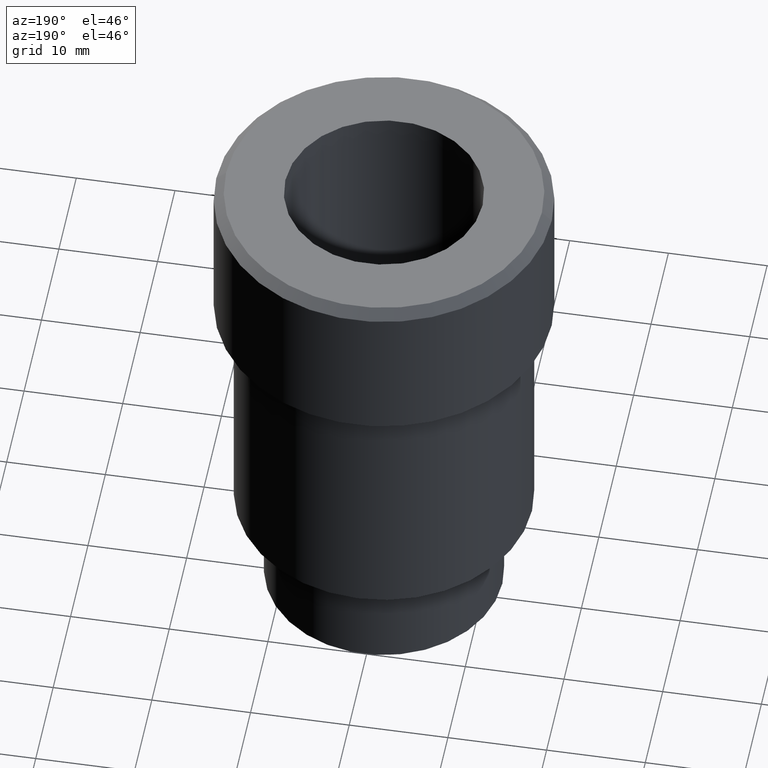
[diagram: clean part render]
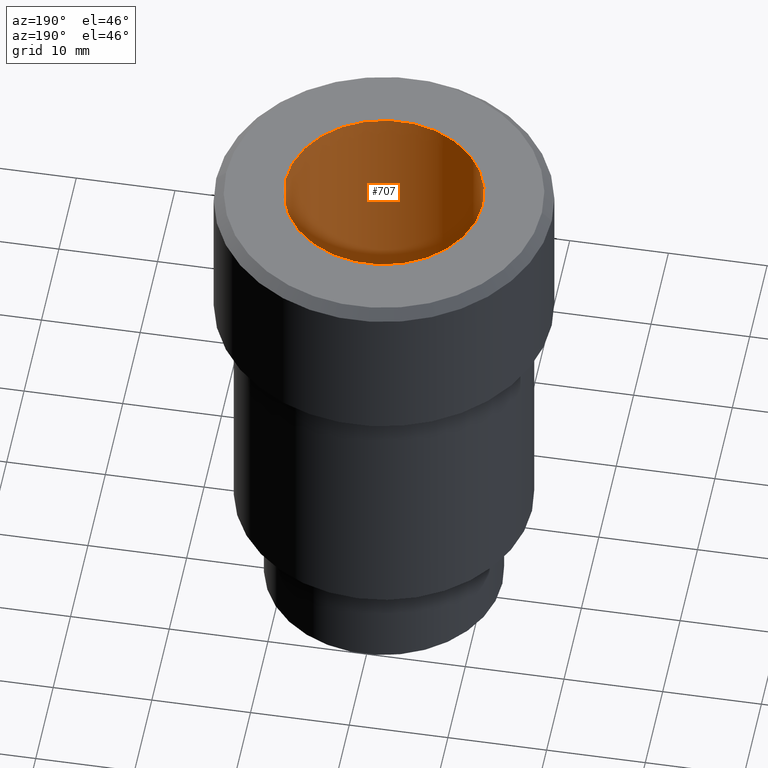
[diagram: same view with one face highlighted and labeled with its STEP entity id]
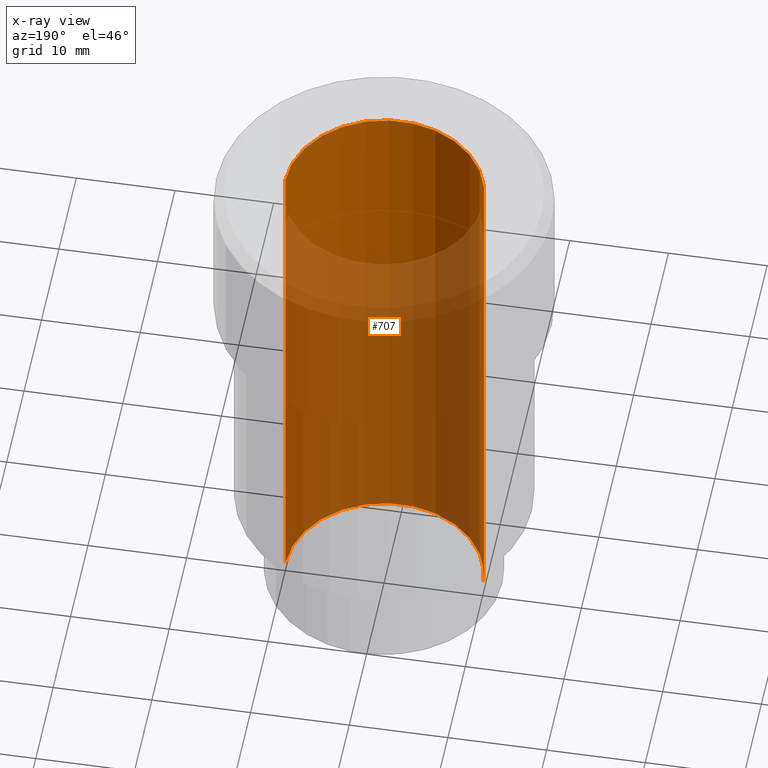
[diagram: x-ray of the same camera — body ghosted, the highlighted face saturated]
A machine part, auxiliary view. The second image highlights one B-rep face of the part: STEP entity #707.
The next image is the same camera in x-ray: the body ghosted, the highlighted face saturated — about 70% of this face is hidden behind the body in this view.
In plain terms, the highlighted cylindrical surface (partial cylindrical patch) has radius 10 mm, axis along (-0, -0, 1).
Its self-contained STEP definition (entity closure, byte-faithful):
#12 = AXIS2_PLACEMENT_3D ( 'NONE', #413, #170, #606 ) ;
#17 = CARTESIAN_POINT ( 'NONE',  ( 10.00000000000000000, 0.000000000000000000, -54.99999999999999289 ) ) ;
#20 = EDGE_CURVE ( 'NONE', #294, #766, #657, .T. ) ;
#22 = VECTOR ( 'NONE', #404, 1000.000000000000000 ) ;
#60 = EDGE_CURVE ( 'NONE', #699, #190, #678, .T. ) ;
#65 = DIRECTION ( 'NONE',  ( 1.000000000000000000, 0.000000000000000000, 0.000000000000000000 ) ) ;
#69 = AXIS2_PLACEMENT_3D ( 'NONE', #357, #483, #561 ) ;
#81 = EDGE_CURVE ( 'NONE', #294, #699, #180, .T. ) ;
#95 = CARTESIAN_POINT ( 'NONE',  ( -10.00000000000000000, 1.224646799147353256E-15, -54.99999999999999289 ) ) ;
#170 = DIRECTION ( 'NONE',  ( -0.000000000000000000, -0.000000000000000000, 1.000000000000000000 ) ) ;
#180 = CIRCLE ( 'NONE', #601, 10.00000000000000000 ) ;
#190 = VERTEX_POINT ( 'NONE', #736 ) ;
#227 = CARTESIAN_POINT ( 'NONE',  ( 10.00000000000000000, 0.000000000000000000, -54.99999999999999289 ) ) ;
#232 = CARTESIAN_POINT ( 'NONE',  ( 0.000000000000000000, 0.000000000000000000, -54.99999999999999289 ) ) ;
#233 = EDGE_CURVE ( 'NONE', #766, #190, #534, .T. ) ;
#291 = CYLINDRICAL_SURFACE ( 'NONE', #12, 10.00000000000000000 ) ;
#294 = VERTEX_POINT ( 'NONE', #318 ) ;
#318 = CARTESIAN_POINT ( 'NONE',  ( -10.00000000000000000, 1.224646799147353256E-15, -54.99999999999999289 ) ) ;
#357 = CARTESIAN_POINT ( 'NONE',  ( 0.000000000000000000, 0.000000000000000000, 0.000000000000000000 ) ) ;
#359 = DIRECTION ( 'NONE',  ( 0.000000000000000000, 0.000000000000000000, 1.000000000000000000 ) ) ;
#364 = CARTESIAN_POINT ( 'NONE',  ( -10.00000000000000000, 1.224646799147353256E-15, 0.000000000000000000 ) ) ;
#391 = ORIENTED_EDGE ( 'NONE', *, *, #60, .F. ) ;
#404 = DIRECTION ( 'NONE',  ( -0.000000000000000000, -0.000000000000000000, 1.000000000000000000 ) ) ;
#413 = CARTESIAN_POINT ( 'NONE',  ( 0.000000000000000000, 0.000000000000000000, -54.99999999999999289 ) ) ;
#420 = VECTOR ( 'NONE', #613, 1000.000000000000000 ) ;
#422 = ORIENTED_EDGE ( 'NONE', *, *, #20, .T. ) ;
#461 = ORIENTED_EDGE ( 'NONE', *, *, #233, .T. ) ;
#483 = DIRECTION ( 'NONE',  ( -0.000000000000000000, -0.000000000000000000, 1.000000000000000000 ) ) ;
#527 = ORIENTED_EDGE ( 'NONE', *, *, #81, .F. ) ;
#534 = CIRCLE ( 'NONE', #69, 10.00000000000000000 ) ;
#561 = DIRECTION ( 'NONE',  ( 1.000000000000000000, 0.000000000000000000, 0.000000000000000000 ) ) ;
#601 = AXIS2_PLACEMENT_3D ( 'NONE', #232, #359, #65 ) ;
#606 = DIRECTION ( 'NONE',  ( 1.000000000000000000, 0.000000000000000000, 0.000000000000000000 ) ) ;
#613 = DIRECTION ( 'NONE',  ( -0.000000000000000000, -0.000000000000000000, 1.000000000000000000 ) ) ;
#657 = LINE ( 'NONE', #95, #22 ) ;
#678 = LINE ( 'NONE', #17, #420 ) ;
#699 = VERTEX_POINT ( 'NONE', #227 ) ;
#707 = ADVANCED_FACE ( 'NONE', ( #722 ), #291, .F. ) ;
#722 = FACE_OUTER_BOUND ( 'NONE', #729, .T. ) ;
#729 = EDGE_LOOP ( 'NONE', ( #527, #422, #461, #391 ) ) ;
#736 = CARTESIAN_POINT ( 'NONE',  ( 10.00000000000000000, 0.000000000000000000, 0.000000000000000000 ) ) ;
#766 = VERTEX_POINT ( 'NONE', #364 ) ;